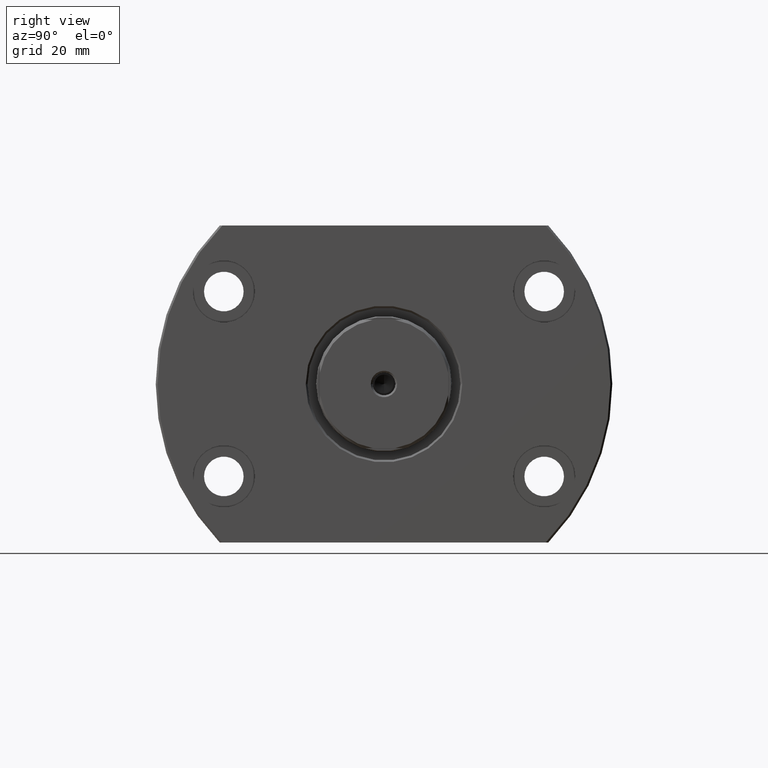
[diagram: clean part render]
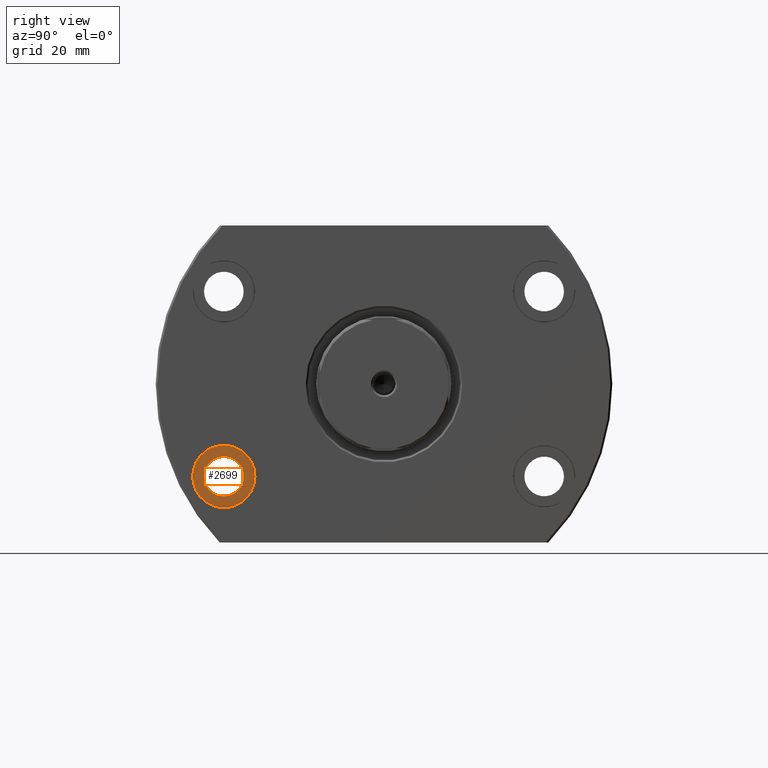
[diagram: same view with one face highlighted and labeled with its STEP entity id]
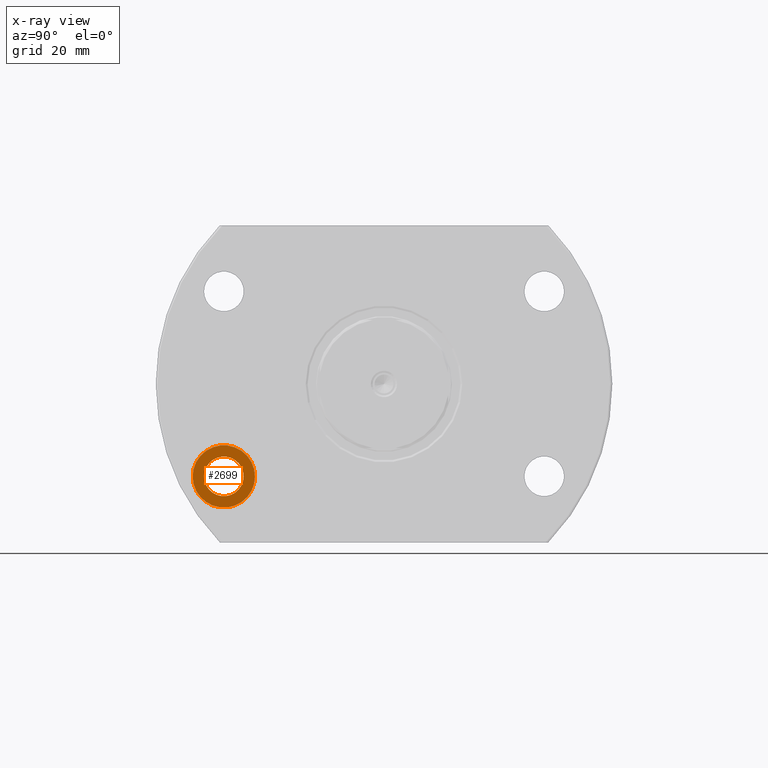
[diagram: x-ray of the same camera — body ghosted, the highlighted face saturated]
A machine part, right view. The second image highlights one B-rep face of the part: STEP entity #2699.
The next image is the same camera in x-ray: the body ghosted, the highlighted face saturated — about 0% of this face is hidden behind the body in this view.
In plain terms, the highlighted planar face has unit normal (1, -0, -0).
Its self-contained STEP definition (entity closure, byte-faithful):
#62 = DIRECTION ( 'NONE',  ( 1.000000000000000000, -2.889302749805715994E-14, -3.155443620884047222E-30 ) ) ;
#95 = CARTESIAN_POINT ( 'NONE',  ( 29.69999999999861728, -47.70000000000086970, -24.49999999999999645 ) ) ;
#207 = ORIENTED_EDGE ( 'NONE', *, *, #2520, .T. ) ;
#424 = DIRECTION ( 'NONE',  ( 1.000000000000000000, -2.889302749805715994E-14, -3.155443620884047222E-30 ) ) ;
#472 = ORIENTED_EDGE ( 'NONE', *, *, #2820, .F. ) ;
#518 = DIRECTION ( 'NONE',  ( 1.000000000000000000, -2.889302749805715994E-14, -3.155443620884047222E-30 ) ) ;
#591 = EDGE_CURVE ( 'NONE', #2393, #2753, #1722, .T. ) ;
#593 = EDGE_LOOP ( 'NONE', ( #472, #789 ) ) ;
#641 = DIRECTION ( 'NONE',  ( 2.907726969256363870E-14, 1.000000000000000000, 0.000000000000000000 ) ) ;
#732 = DIRECTION ( 'NONE',  ( 1.000000000000000000, -2.889302749805715994E-14, -3.155443620884047222E-30 ) ) ;
#763 = DIRECTION ( 'NONE',  ( 2.901719268906656730E-14, 1.000000000000000000, 0.000000000000000000 ) ) ;
#772 = AXIS2_PLACEMENT_3D ( 'NONE', #3011, #62, #763 ) ;
#789 = ORIENTED_EDGE ( 'NONE', *, *, #591, .F. ) ;
#842 = AXIS2_PLACEMENT_3D ( 'NONE', #3154, #732, #895 ) ;
#895 = DIRECTION ( 'NONE',  ( 2.901719268906656730E-14, 1.000000000000000000, 0.000000000000000000 ) ) ;
#1314 = AXIS2_PLACEMENT_3D ( 'NONE', #1592, #1881, #641 ) ;
#1351 = CARTESIAN_POINT ( 'NONE',  ( 29.69999999999852847, -50.70000000000087681, -24.49999999999999645 ) ) ;
#1422 = DIRECTION ( 'NONE',  ( 2.907726969256363870E-14, 1.000000000000000000, 0.000000000000000000 ) ) ;
#1440 = ORIENTED_EDGE ( 'NONE', *, *, #1744, .T. ) ;
#1562 = CARTESIAN_POINT ( 'NONE',  ( 29.69999999999892282, -37.20000000000086970, -24.49999999999999645 ) ) ;
#1592 = CARTESIAN_POINT ( 'NONE',  ( 29.69999999999877005, -42.45000000000086970, -24.49999999999999645 ) ) ;
#1722 = CIRCLE ( 'NONE', #2196, 5.249999999999997335 ) ;
#1744 = EDGE_CURVE ( 'NONE', #2939, #2382, #2192, .T. ) ;
#1764 = FACE_OUTER_BOUND ( 'NONE', #2998, .T. ) ;
#1881 = DIRECTION ( 'NONE',  ( 1.000000000000000000, -2.889302749805715994E-14, -3.155443620884047222E-30 ) ) ;
#2192 = CIRCLE ( 'NONE', #772, 8.250000000000007105 ) ;
#2196 = AXIS2_PLACEMENT_3D ( 'NONE', #2849, #424, #1422 ) ;
#2312 = CARTESIAN_POINT ( 'NONE',  ( 29.69999999999999574, -8.584207636969308790E-13, -1.268488335595387073E-28 ) ) ;
#2353 = AXIS2_PLACEMENT_3D ( 'NONE', #2312, #518, #2754 ) ;
#2382 = VERTEX_POINT ( 'NONE', #1351 ) ;
#2393 = VERTEX_POINT ( 'NONE', #95 ) ;
#2401 = CIRCLE ( 'NONE', #842, 8.250000000000007105 ) ;
#2520 = EDGE_CURVE ( 'NONE', #2382, #2939, #2401, .T. ) ;
#2597 = CARTESIAN_POINT ( 'NONE',  ( 29.69999999999900808, -34.20000000000086260, -24.49999999999999645 ) ) ;
#2699 = ADVANCED_FACE ( 'NONE', ( #3019, #1764 ), #2736, .T. ) ;
#2704 = CIRCLE ( 'NONE', #1314, 5.249999999999997335 ) ;
#2736 = PLANE ( 'NONE',  #2353 ) ;
#2753 = VERTEX_POINT ( 'NONE', #1562 ) ;
#2754 = DIRECTION ( 'NONE',  ( 2.889302749805715994E-14, 1.000000000000000000, 0.000000000000000000 ) ) ;
#2820 = EDGE_CURVE ( 'NONE', #2753, #2393, #2704, .T. ) ;
#2849 = CARTESIAN_POINT ( 'NONE',  ( 29.69999999999877005, -42.45000000000086970, -24.49999999999999645 ) ) ;
#2939 = VERTEX_POINT ( 'NONE', #2597 ) ;
#2998 = EDGE_LOOP ( 'NONE', ( #1440, #207 ) ) ;
#3011 = CARTESIAN_POINT ( 'NONE',  ( 29.69999999999877005, -42.45000000000086970, -24.49999999999999645 ) ) ;
#3019 = FACE_BOUND ( 'NONE', #593, .T. ) ;
#3154 = CARTESIAN_POINT ( 'NONE',  ( 29.69999999999877005, -42.45000000000086970, -24.49999999999999645 ) ) ;